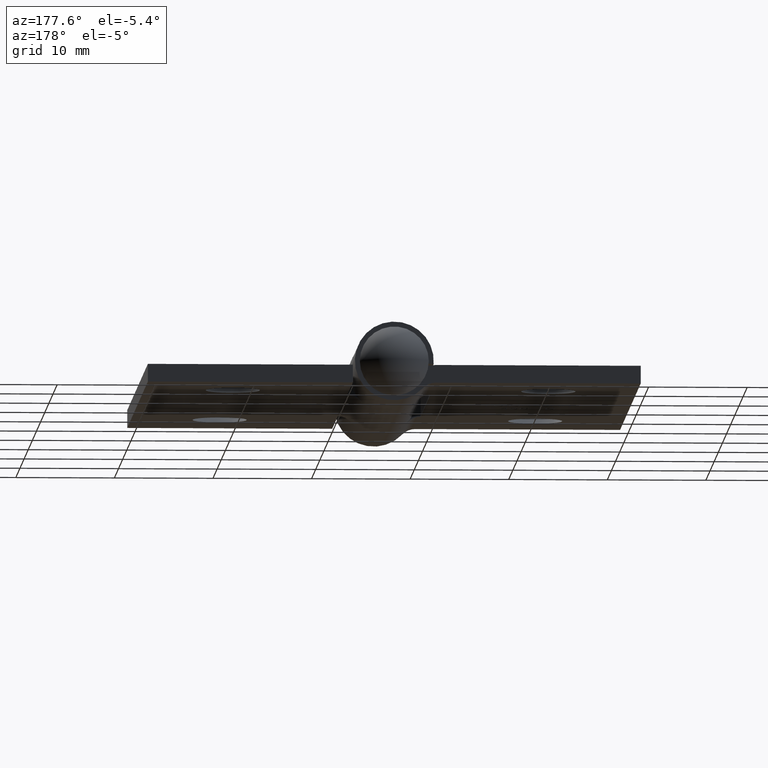
[diagram: clean part render]
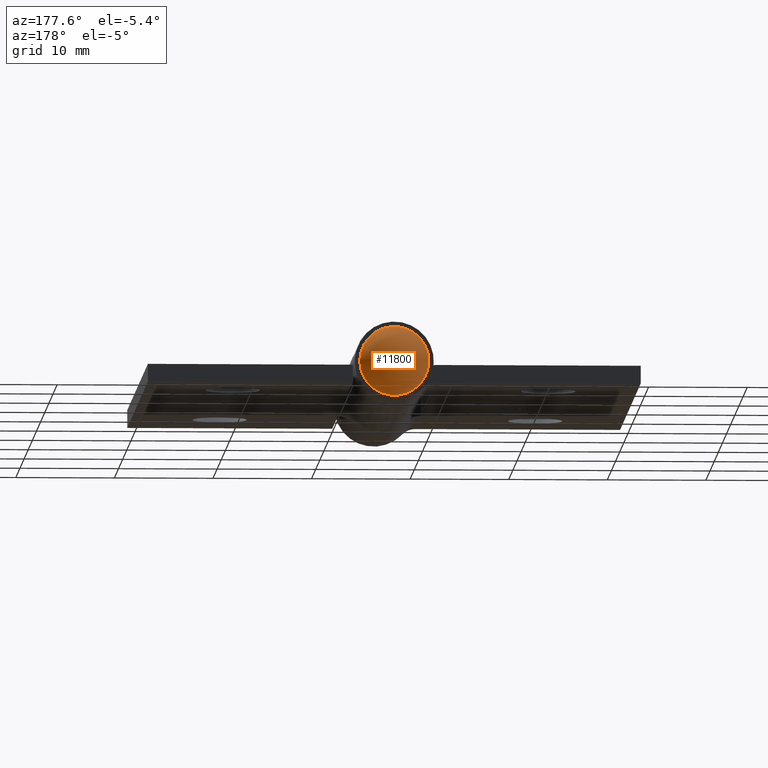
[diagram: same view with one face highlighted and labeled with its STEP entity id]
A machine part, auxiliary view. The second image highlights one B-rep face of the part: STEP entity #11800.
In plain terms, the highlighted spherical surface has radius 3.8841 mm.
Its self-contained STEP definition (entity closure, byte-faithful):
#446 = AXIS2_PLACEMENT_3D ( 'NONE', #9173, #3755, #2798 ) ;
#2387 = AXIS2_PLACEMENT_3D ( 'NONE', #8895, #7103, #6204 ) ;
#2525 = ORIENTED_EDGE ( 'NONE', *, *, #4784, .T. ) ;
#2798 = DIRECTION ( 'NONE',  ( -1.000000000000000000, 0.000000000000000000, 0.000000000000000000 ) ) ;
#3186 = FACE_OUTER_BOUND ( 'NONE', #10682, .T. ) ;
#3755 = DIRECTION ( 'NONE',  ( -3.619325733557267673E-30, 1.000000000000000000, -0.000000000000000000 ) ) ;
#4784 = EDGE_CURVE ( 'NONE', #5050, #5050, #6865, .T. ) ;
#5050 = VERTEX_POINT ( 'NONE', #8167 ) ;
#6204 = DIRECTION ( 'NONE',  ( 1.000000000000000000, 0.000000000000000000, 0.000000000000000000 ) ) ;
#6865 = CIRCLE ( 'NONE', #446, 3.500000000000000444 ) ;
#7103 = DIRECTION ( 'NONE',  ( 0.000000000000000000, 0.000000000000000000, -1.000000000000000000 ) ) ;
#8167 = CARTESIAN_POINT ( 'NONE',  ( -3.500000000000000444, 26.00000000000000000, 0.000000000000000000 ) ) ;
#8895 = CARTESIAN_POINT ( 'NONE',  ( 0.000000000000000000, 24.31590909090911623, 0.000000000000000000 ) ) ;
#9173 = CARTESIAN_POINT ( 'NONE',  ( 0.000000000000000000, 26.00000000000000000, 0.000000000000000000 ) ) ;
#9628 = SPHERICAL_SURFACE ( 'NONE', #2387, 3.884090909090888388 ) ;
#10682 = EDGE_LOOP ( 'NONE', ( #2525 ) ) ;
#11800 = ADVANCED_FACE ( 'NONE', ( #3186 ), #9628, .T. ) ;